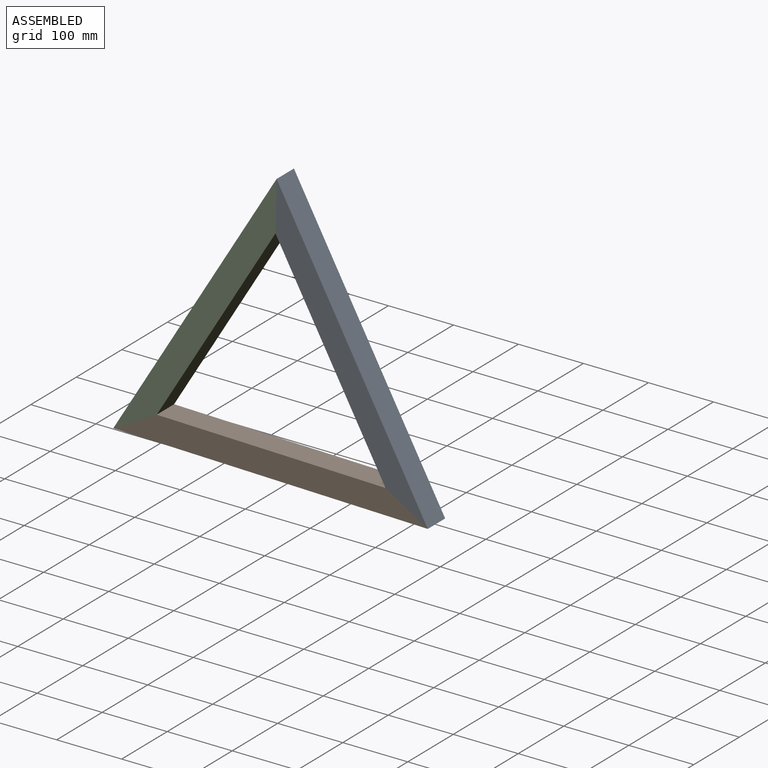
[diagram: assembled view]
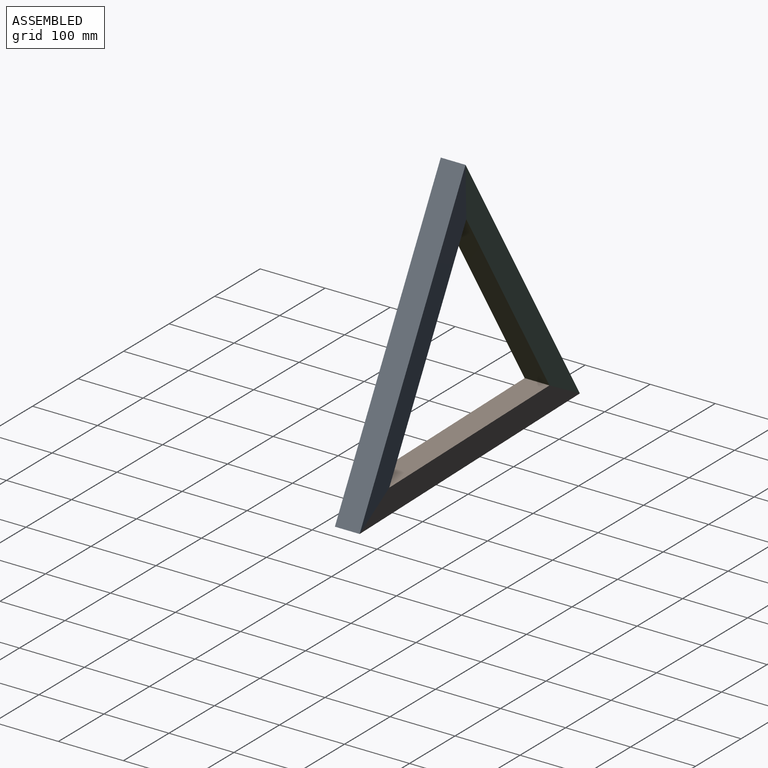
[diagram: assembled view, second angle]
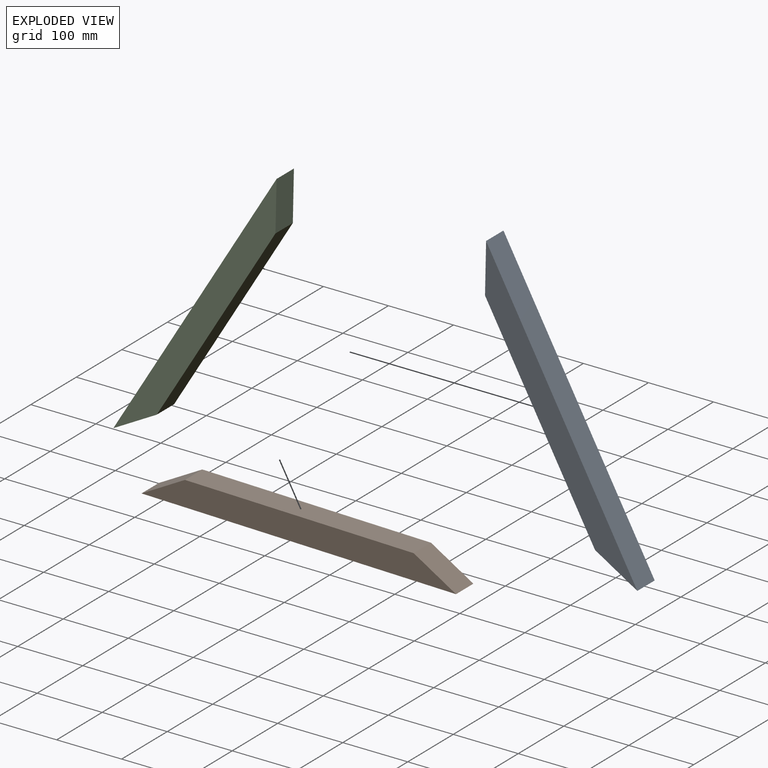
[diagram: exploded view]
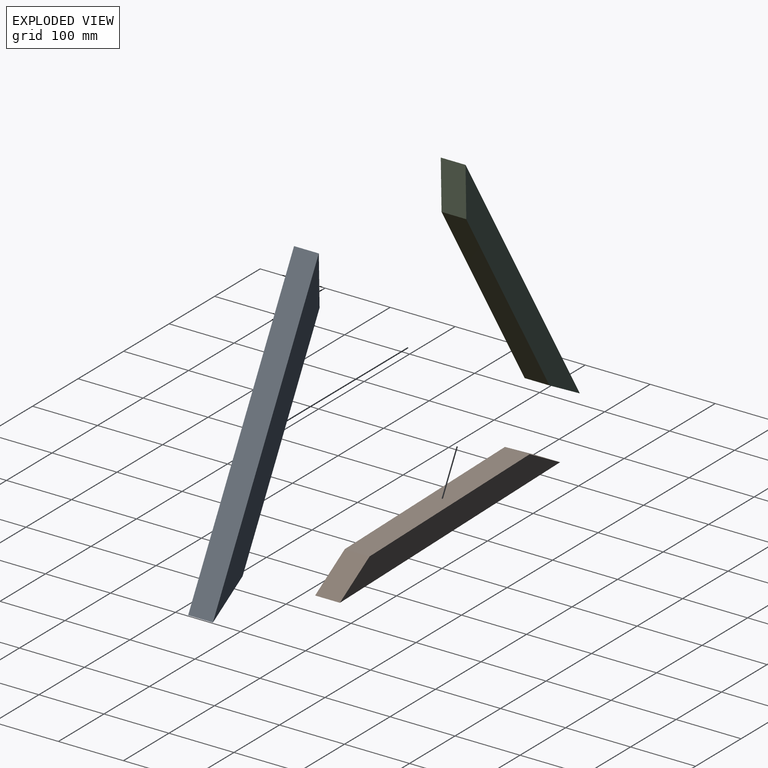
[diagram: exploded view, second angle]
ASSEMBLY  parts=3 mates=2
PART A: 6 faces, bbox 483.9x38.1x38.1 mm
  f0: plane 65.99x38.1mm, normal (-0.5,0,0.87), area 2903.2mm2, adj f1,f3,f4,f5
  f1: plane 483.94x38.1mm, normal (0,0,-1), area 18437.9mm2, adj f0,f2,f4,f5
  f2: plane 65.99x38.1mm, normal (0.5,0,0.87), area 2903.2mm2, adj f1,f3,f4,f5
  f3: plane 351.95x38.1mm, normal (0,0,1), area 13409.4mm2, adj f0,f2,f4,f5
  f4: plane 483.94x38.1mm, normal (0,-1,0), area 15923.7mm2, adj f0,f1,f2,f3
  f5: plane 483.94x38.1mm, normal (0,1,0), area 15923.7mm2, adj f0,f1,f2,f3
PART B: same geometry as A
PART C: same geometry as A
PLACE A rot(axis=(0,-1,0),118.7deg) t=(-518.05,-134.54,-366.32)mm
PLACE B rot(axis=(0,1,0),1.3deg) t=(-609.38,-134.54,-516.74)mm
PLACE C rot(axis=(0,1,0),121.3deg) t=(-693.98,-134.54,-362.43)mm
MATE fastened C.f0 <-> A.f2  axis (1,0,-0.02) through (-602.66,-172.64,-212.01)mm
MATE fastened C.f2 <-> B.f0  axis (0.48,0,-0.88) through (-785.31,-134.54,-512.86)mm
